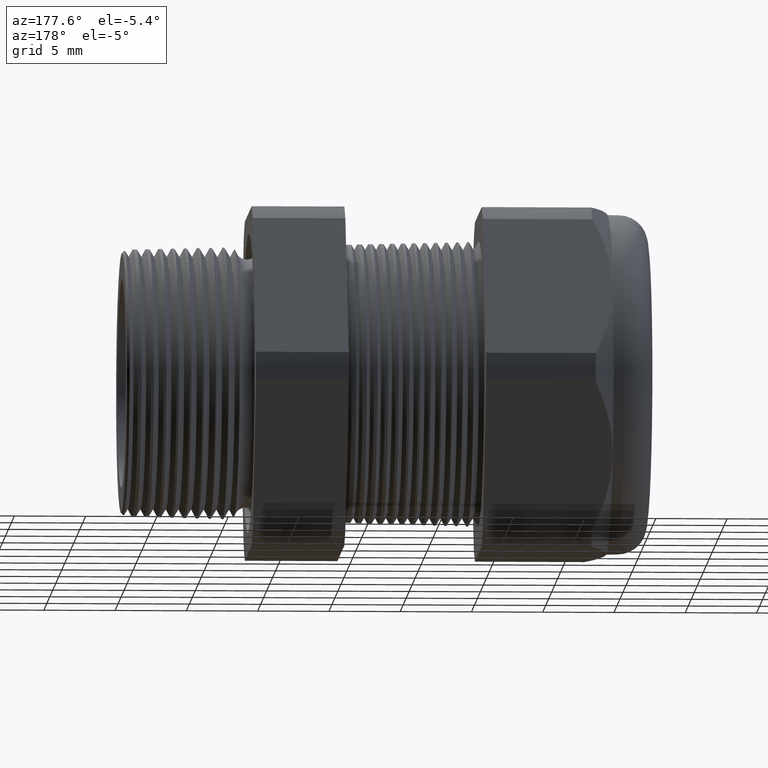
[diagram: clean part render]
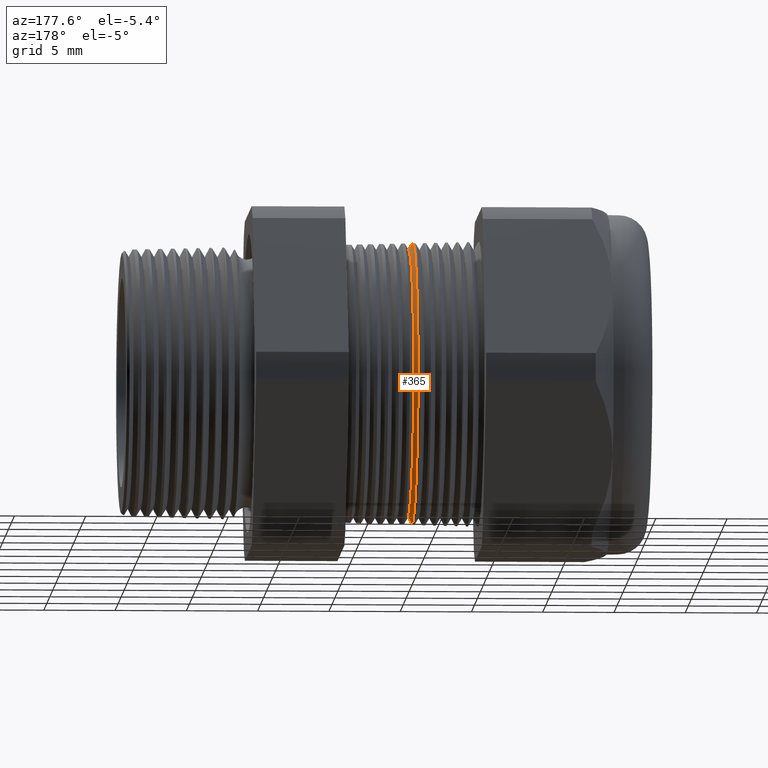
[diagram: same view with one face highlighted and labeled with its STEP entity id]
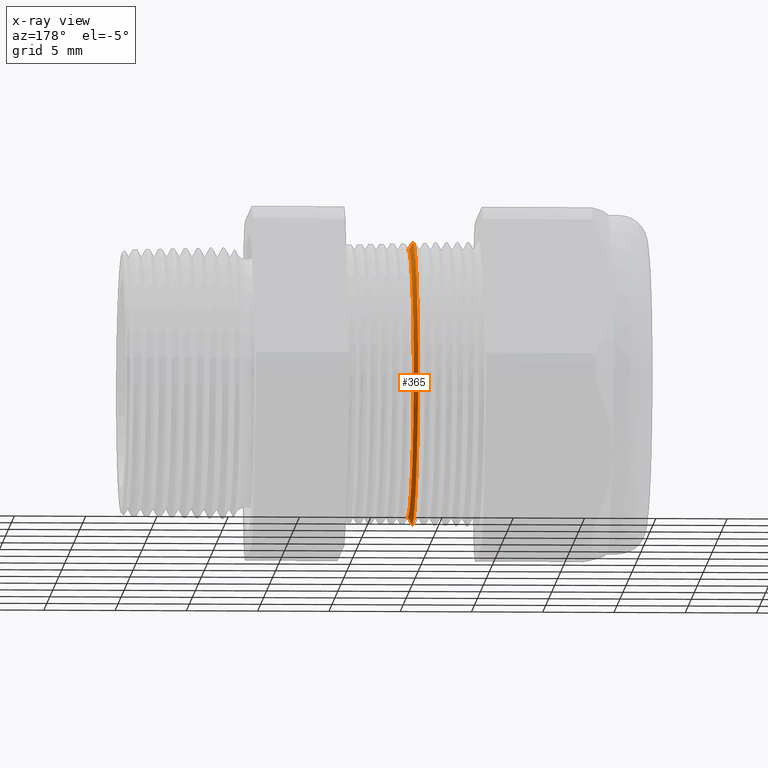
[diagram: x-ray of the same camera — body ghosted, the highlighted face saturated]
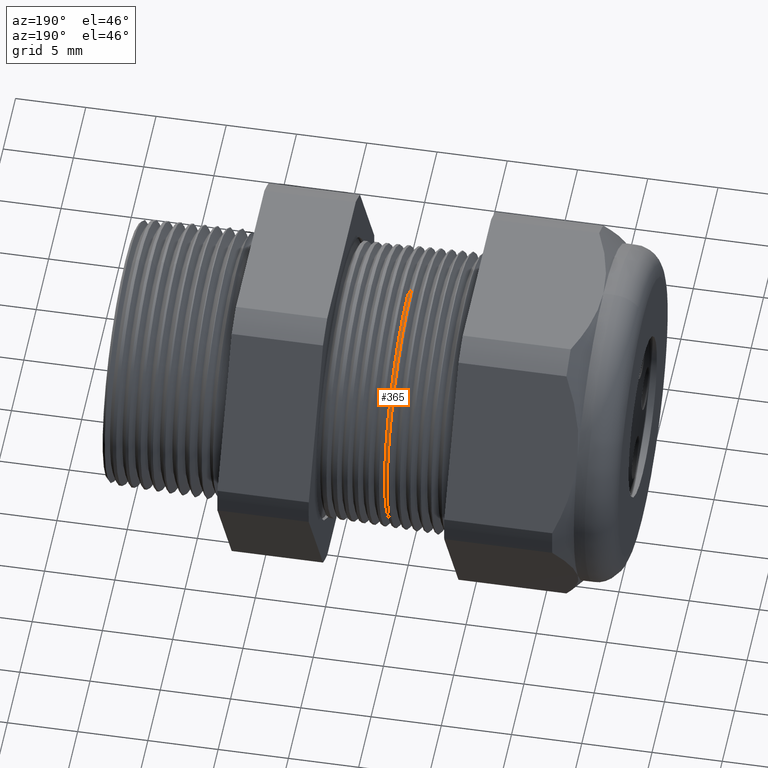
[diagram: same view with one face highlighted and labeled with its STEP entity id]
A machine part, auxiliary view. The second image highlights one B-rep face of the part: STEP entity #365.
The next image is the same camera in x-ray: the body ghosted, the highlighted face saturated — about 0% of this face is hidden behind the body in this view.
A second angle (auxiliary view) of the same face is appended — the face is thin or edge-on in the first view.
In plain terms, the highlighted conical surface has half-angle 61.5 deg.
Its self-contained STEP definition (entity closure, byte-faithful):
#365 = ADVANCED_FACE ( 'NONE', ( #2579 ), #2577, .T. ) ;
#366 = EDGE_LOOP ( 'NONE', ( #367, #422, #425, #428 ) ) ;
#367 = ORIENTED_EDGE ( 'NONE', *, *, #439, .F. ) ;
#385 = VERTEX_POINT ( 'NONE', #2602 ) ;
#422 = ORIENTED_EDGE ( 'NONE', *, *, #423, .T. ) ;
#423 = EDGE_CURVE ( 'NONE', #385, #424, #2661, .T. ) ;
#424 = VERTEX_POINT ( 'NONE', #2657 ) ;
#425 = ORIENTED_EDGE ( 'NONE', *, *, #426, .T. ) ;
#426 = EDGE_CURVE ( 'NONE', #424, #427, #2656, .T. ) ;
#427 = VERTEX_POINT ( 'NONE', #2651 ) ;
#428 = ORIENTED_EDGE ( 'NONE', *, *, #429, .F. ) ;
#429 = EDGE_CURVE ( 'NONE', #440, #427, #2650, .T. ) ;
#439 = EDGE_CURVE ( 'NONE', #385, #440, #2691, .T. ) ;
#440 = VERTEX_POINT ( 'NONE', #2686 ) ;
#2573 = DIRECTION ( 'NONE',  ( 0.0000000000000000000, 0.0000000000000000000, 1.000000000000000000 ) ) ;
#2574 = DIRECTION ( 'NONE',  ( -1.000000000000000000, 0.0000000000000000000, 0.0000000000000000000 ) ) ;
#2575 = CARTESIAN_POINT ( 'NONE',  ( -0.7654330708661421000, 0.0000000000000000000, 0.0000000000000000000 ) ) ;
#2576 = AXIS2_PLACEMENT_3D ( 'NONE', #2575, #2574, #2573 ) ;
#2577 = CONICAL_SURFACE ( 'NONE', #2576, 0.3950000000000000200, 1.073377489976500500 ) ;
#2579 = FACE_OUTER_BOUND ( 'NONE', #366, .T. ) ;
#2602 = CARTESIAN_POINT ( 'NONE',  ( -0.7516586839320380500, 4.652734989755814500E-017, -0.3696307351718083300 ) ) ;
#2648 = VECTOR ( 'NONE', #2710, 39.37007874015748100 ) ;
#2649 = CARTESIAN_POINT ( 'NONE',  ( -0.7654330708661421000, 0.0000000000000000000, 0.3950000000000000200 ) ) ;
#2650 = LINE ( 'NONE', #2649, #2648 ) ;
#2651 = CARTESIAN_POINT ( 'NONE',  ( -0.7628369566799666500, 0.0000000000000000000, 0.3902185524750838600 ) ) ;
#2652 = DIRECTION ( 'NONE',  ( 0.0000000000000000000, 0.0000000000000000000, 1.000000000000000000 ) ) ;
#2653 = DIRECTION ( 'NONE',  ( 1.000000000000000000, 0.0000000000000000000, 0.0000000000000000000 ) ) ;
#2654 = CARTESIAN_POINT ( 'NONE',  ( -0.7628369566799666500, 0.0000000000000000000, 0.0000000000000000000 ) ) ;
#2655 = AXIS2_PLACEMENT_3D ( 'NONE', #2654, #2653, #2652 ) ;
#2656 = CIRCLE ( 'NONE', #2655, 0.3902185524750838600 ) ;
#2657 = CARTESIAN_POINT ( 'NONE',  ( -0.7628369566799666500, 4.779778303123113600E-017, -0.3902185524750838600 ) ) ;
#2658 = DIRECTION ( 'NONE',  ( -0.4771587602596191200, 1.076240564057387800E-016, -0.8788171126619595000 ) ) ;
#2659 = VECTOR ( 'NONE', #2658, 39.37007874015748100 ) ;
#2660 = CARTESIAN_POINT ( 'NONE',  ( -0.7654330708661421000, 4.837354856632045600E-017, -0.3950000000000000200 ) ) ;
#2661 = LINE ( 'NONE', #2660, #2659 ) ;
#2686 = CARTESIAN_POINT ( 'NONE',  ( -0.7516586839320380500, 0.0000000000000000000, 0.3696307351718083300 ) ) ;
#2687 = DIRECTION ( 'NONE',  ( 0.0000000000000000000, 0.0000000000000000000, -1.000000000000000000 ) ) ;
#2688 = DIRECTION ( 'NONE',  ( 1.000000000000000000, 0.0000000000000000000, 0.0000000000000000000 ) ) ;
#2689 = CARTESIAN_POINT ( 'NONE',  ( -0.7516586839320380500, 0.0000000000000000000, 0.0000000000000000000 ) ) ;
#2690 = AXIS2_PLACEMENT_3D ( 'NONE', #2689, #2688, #2687 ) ;
#2691 = CIRCLE ( 'NONE', #2690, 0.3696307351718083300 ) ;
#2710 = DIRECTION ( 'NONE',  ( -0.4771587602596191200, 0.0000000000000000000, 0.8788171126619595000 ) ) ;